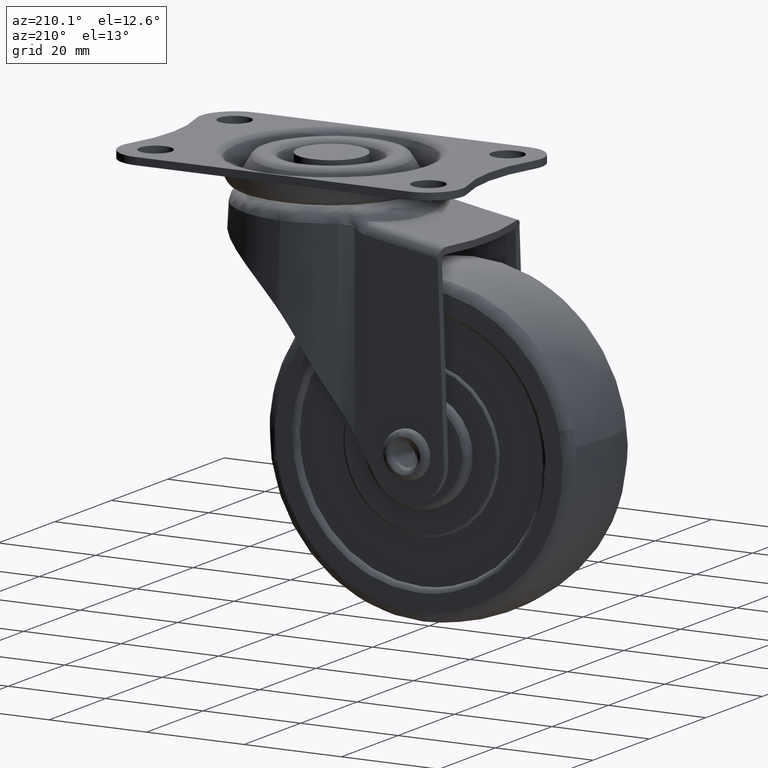
[diagram: clean part render]
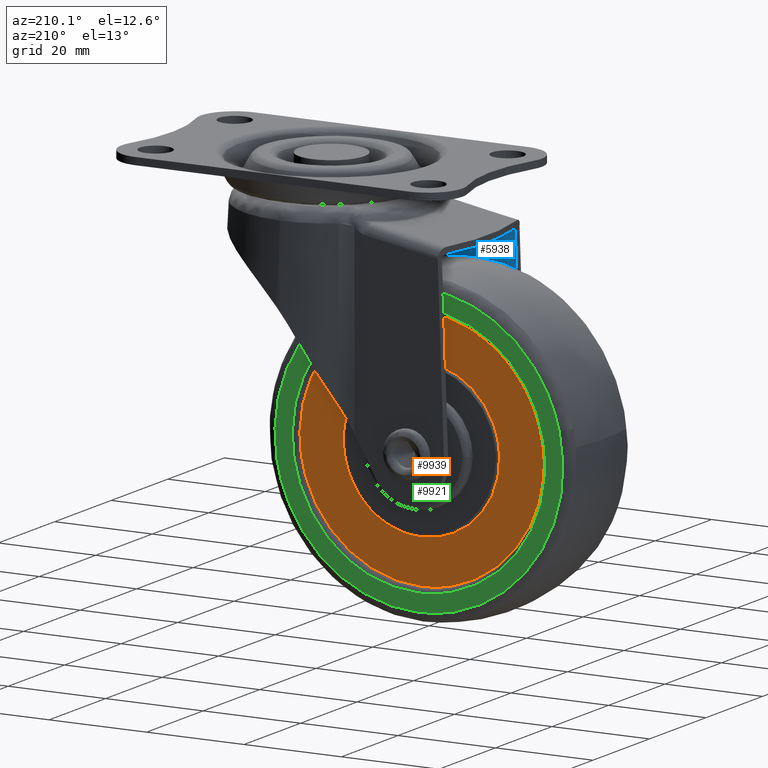
[diagram: same view with three faces highlighted in distinct colors, each labeled with its STEP entity id]
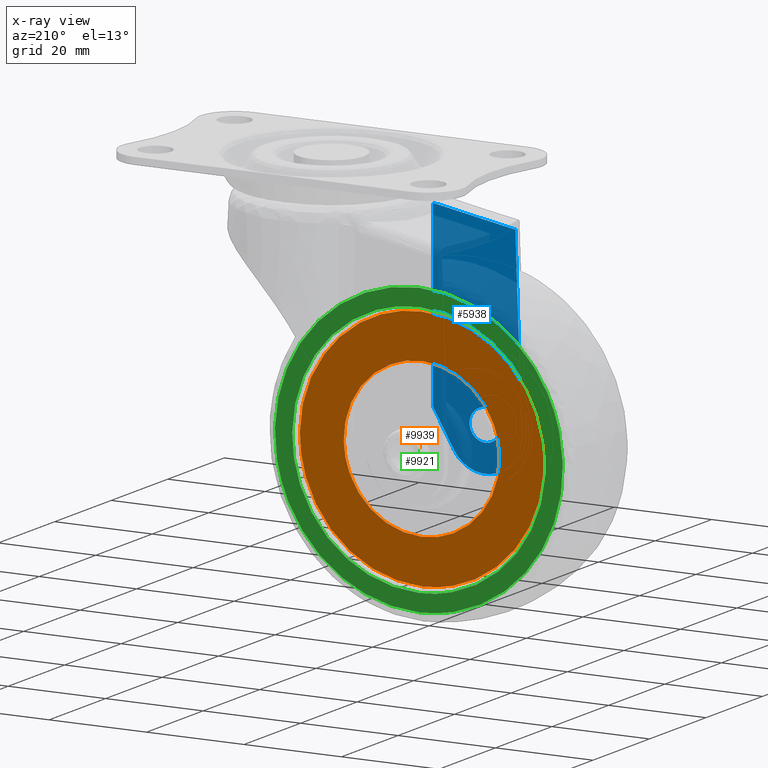
[diagram: x-ray of the same camera — body ghosted, the three highlighted faces saturated]
A machine part, auxiliary view with three faces highlighted in distinct colors.
The next image is the same camera in x-ray (body ghosted, the three faces saturated) — at least one of them is partly hidden behind the body in this view.
Their STEP definitions:

[orange] entity #9939 — the highlighted face is a freeform B-spline surface patch.
#9165=CARTESIAN_POINT('',(-48.939141846007182,9.500000000600332,-49.743327289437843));
#9166=VERTEX_POINT('',#9165);
#9177=CARTESIAN_POINT('',(-24.0,9.499999999999250,-72.999996000000010));
#9178=VERTEX_POINT('',#9177);
#9179=CARTESIAN_POINT('',(-48.939141846007182,9.500000000600332,-49.743327289437843));
#9180=CARTESIAN_POINT('',(-48.850623939567228,9.500000000567590,-51.010621126954668));
#9181=CARTESIAN_POINT('',(-48.522542705484177,9.500000000509926,-53.240746031067680));
#9182=CARTESIAN_POINT('',(-47.545731310311872,9.500000000422443,-56.626704257228504));
#9183=CARTESIAN_POINT('',(-46.022002323247712,9.500000000333177,-60.078594272617359));
#9184=CARTESIAN_POINT('',(-43.672727054856452,9.500000000241204,-63.642440613359092));
#9185=CARTESIAN_POINT('',(-40.896903108335849,9.500000000165729,-66.553119113340117));
#9186=CARTESIAN_POINT('',(-38.266301986923821,9.500000000113197,-68.593016456514988));
#9187=CARTESIAN_POINT('',(-35.844666200468538,9.500000000074929,-70.071823042099808));
#9188=CARTESIAN_POINT('',(-33.453088855772123,9.500000000045855,-71.196985915342367));
#9189=CARTESIAN_POINT('',(-30.492344783800380,9.500000000019663,-72.215411228988557));
#9190=CARTESIAN_POINT('',(-27.371398492487369,9.500000000002514,-72.855473239428022));
#9191=CARTESIAN_POINT('',(-25.026067112568580,9.499999999999782,-73.000013051441030));
#9192=CARTESIAN_POINT('',(-24.0,9.499999999999250,-72.999996000000010));
#9193=B_SPLINE_CURVE_WITH_KNOTS('',3,(#9179,#9180,#9181,#9182,#9183,#9184,#9185,#9186,#9187,#9188,#9189,#9190,#9191,#9192),.UNSPECIFIED.,.F.,.U.,(4,1,1,1,1,1,1,1,1,1,1,4),(0.000000067497595,3.811141506573662,6.742797878425922,10.553973476878570,15.098040981042439,19.495493127105309,22.573731554936462,25.065669646339490,27.997327437654850,30.489242134150999,34.447003549939197,37.525214640770344),.UNSPECIFIED.);
#9194=EDGE_CURVE('',#9166,#9178,#9193,.T.);
#9196=CARTESIAN_POINT('',(0.998026105094186,9.500000000618792,-47.685845002819782));
#9197=VERTEX_POINT('',#9196);
#9198=CARTESIAN_POINT('',(-24.0,9.499999999999250,-72.999996000000010));
#9199=CARTESIAN_POINT('',(-22.556832388202981,9.499999999974609,-73.000109820509593));
#9200=CARTESIAN_POINT('',(-19.722074604298580,9.499999999936309,-72.753866089340079));
#9201=CARTESIAN_POINT('',(-15.970036875507260,9.499999999912994,-71.769098026257467));
#9202=CARTESIAN_POINT('',(-12.310694546031460,9.499999999914774,-70.213234530808876));
#9203=CARTESIAN_POINT('',(-9.146351246523020,9.499999999942093,-68.244132308917756));
#9204=CARTESIAN_POINT('',(-6.538444440088044,9.499999999991763,-65.968288138885029));
#9205=CARTESIAN_POINT('',(-4.453445593694538,9.500000000050504,-63.679866191014170));
#9206=CARTESIAN_POINT('',(-2.678591410363042,9.500000000122872,-61.201137442517712));
#9207=CARTESIAN_POINT('',(-1.136535041079512,9.500000000217415,-58.277200742827247));
#9208=CARTESIAN_POINT('',(0.095745696772568,9.500000000332220,-54.988938168211142));
#9209=CARTESIAN_POINT('',(0.861762773185154,9.500000000465482,-51.450397854770877));
#9210=CARTESIAN_POINT('',(1.012955299274555,9.500000000569530,-48.871199615428843));
#9211=CARTESIAN_POINT('',(0.998026105094186,9.500000000618792,-47.685845002819782));
#9212=B_SPLINE_CURVE_WITH_KNOTS('',3,(#9198,#9199,#9200,#9201,#9202,#9203,#9204,#9205,#9206,#9207,#9208,#9209,#9210,#9211),.UNSPECIFIED.,.F.,.U.,(4,1,1,1,1,1,1,1,1,1,1,4),(0.000000076253336,4.329488293028973,8.504401049516243,11.596915601647630,16.235711844516231,19.637485069020912,21.956783402940129,25.513185396143161,28.760342778874740,31.852858677649770,36.027773728794394,39.584130528737099),.UNSPECIFIED.);
#9213=EDGE_CURVE('',#9178,#9197,#9212,.T.);
#9311=CARTESIAN_POINT('',(-24.0,9.499999999999250,-22.999995999999999));
#9312=VERTEX_POINT('',#9311);
#9313=CARTESIAN_POINT('',(0.998026105094186,9.500000000618792,-47.685845002819782));
#9314=CARTESIAN_POINT('',(0.984666661163612,9.500000000592069,-46.620746325020910));
#9315=CARTESIAN_POINT('',(0.806037927817079,9.500000000533513,-44.289517366722627));
#9316=CARTESIAN_POINT('',(0.139534466126632,9.500000000457547,-41.258846912117981));
#9317=CARTESIAN_POINT('',(-0.854574051082417,9.500000000386423,-38.432762878070498));
#9318=CARTESIAN_POINT('',(-2.309509362781089,9.500000000309539,-35.355128805962408));
#9319=CARTESIAN_POINT('',(-4.266753536347144,9.500000000237224,-32.493945410476343));
#9320=CARTESIAN_POINT('',(-6.583913616590419,9.500000000175367,-30.002379754896118));
#9321=CARTESIAN_POINT('',(-9.070025169408622,9.500000000120094,-27.829250011453109));
#9322=CARTESIAN_POINT('',(-12.117292056902260,9.500000000071948,-25.879920663054371));
#9323=CARTESIAN_POINT('',(-15.710808014749640,9.500000000032348,-24.327461523898720));
#9324=CARTESIAN_POINT('',(-19.536394979005689,9.500000000006370,-23.277663518438189));
#9325=CARTESIAN_POINT('',(-22.376828915726168,9.499999999999162,-22.999776089343332));
#9326=CARTESIAN_POINT('',(-24.0,9.499999999999250,-22.999995999999999));
#9327=B_SPLINE_CURVE_WITH_KNOTS('',3,(#9313,#9314,#9315,#9316,#9317,#9318,#9319,#9320,#9321,#9322,#9323,#9324,#9325,#9326),.UNSPECIFIED.,.F.,.U.,(4,1,1,1,1,1,1,1,1,1,1,4),(0.000000073063255,3.195557343852556,6.999856817659520,9.282438064157510,12.173704510756410,17.195341110352651,19.630030148410640,22.369118198349650,27.086448829008749,30.434232295920019,34.086338670871022,38.955809040821400),.UNSPECIFIED.);
#9328=EDGE_CURVE('',#9197,#9312,#9327,.T.);
#9330=CARTESIAN_POINT('',(-24.0,9.499999999999250,-22.999995999999999));
#9331=CARTESIAN_POINT('',(-25.655552505679228,9.499999999972477,-22.999784726157792));
#9332=CARTESIAN_POINT('',(-28.806348288670840,9.499999999933642,-23.314099933455559));
#9333=CARTESIAN_POINT('',(-32.918763860840613,9.499999999912861,-24.534112780995478));
#9334=CARTESIAN_POINT('',(-36.638191546449043,9.499999999919670,-26.309694527010009));
#9335=CARTESIAN_POINT('',(-39.554131551770361,9.499999999947821,-28.314919299367510));
#9336=CARTESIAN_POINT('',(-42.380666136965687,9.500000000000291,-30.930217379363270));
#9337=CARTESIAN_POINT('',(-44.918766845454442,9.500000000076225,-34.048091022820607));
#9338=CARTESIAN_POINT('',(-47.069721564714527,9.500000000190973,-38.010028561308943));
#9339=CARTESIAN_POINT('',(-48.313667809097410,9.500000000313287,-41.831962705679302));
#9340=CARTESIAN_POINT('',(-48.988716255223963,9.500000000447100,-45.678207436001543));
#9341=CARTESIAN_POINT('',(-49.047302341968567,9.500000000540705,-48.198368300116762));
#9342=CARTESIAN_POINT('',(-48.939141846007182,9.500000000600332,-49.743327289437843));
#9343=B_SPLINE_CURVE_WITH_KNOTS('',3,(#9330,#9331,#9332,#9333,#9334,#9335,#9336,#9337,#9338,#9339,#9340,#9341,#9342),.UNSPECIFIED.,.F.,.U.,(4,1,1,1,1,1,1,1,1,1,4),(0.000000081183039,4.966624691977451,9.452611291053817,12.817105815723670,17.303103327794261,20.026740867956491,24.352457605378358,29.319111985509920,33.484683901261057,36.368533096317250,41.014725634743392),.UNSPECIFIED.);
#9344=EDGE_CURVE('',#9312,#9166,#9343,.T.);
#9373=CARTESIAN_POINT('',(-8.005052971470526,9.500000004374400,-48.402077527225600));
#9374=VERTEX_POINT('',#9373);
#9375=CARTESIAN_POINT('',(-24.0,9.499999999999361,-31.999995999999999));
#9376=VERTEX_POINT('',#9375);
#9377=CARTESIAN_POINT('',(-8.005052971470526,9.500000004374400,-48.402077527225600));
#9378=CARTESIAN_POINT('',(-7.972984933660475,9.500000003791490,-47.139006773630207));
#9379=CARTESIAN_POINT('',(-8.163836458145424,9.500000002900263,-45.105570107788672));
#9380=CARTESIAN_POINT('',(-8.974929506401589,9.500000001786930,-42.321221782593071));
#9381=CARTESIAN_POINT('',(-10.003740791964340,9.500000000979537,-40.114089304944777));
#9382=CARTESIAN_POINT('',(-11.213204296140880,9.500000000393877,-38.315755719828239));
#9383=CARTESIAN_POINT('',(-12.607582536139560,9.499999999930020,-36.705294562363193));
#9384=CARTESIAN_POINT('',(-14.244041745459411,9.499999999576627,-35.233353909975577));
#9385=CARTESIAN_POINT('',(-16.625710580188411,9.499999999337458,-33.694720120900499));
#9386=CARTESIAN_POINT('',(-19.877432441718721,9.499999999366624,-32.371227594054247));
#9387=CARTESIAN_POINT('',(-22.503760750339389,9.499999999707690,-31.999406674674312));
#9388=CARTESIAN_POINT('',(-24.0,9.499999999999361,-31.999995999999999));
#9389=B_SPLINE_CURVE_WITH_KNOTS('',3,(#9377,#9378,#9379,#9380,#9381,#9382,#9383,#9384,#9385,#9386,#9387,#9388),.UNSPECIFIED.,.F.,.U.,(4,1,1,1,1,1,1,1,1,4),(0.000000086544187,3.790335944859091,6.084488540147010,8.677883967285666,11.071805455489040,12.567979506956400,15.061571250557639,17.654987880271360,21.046350751852319,25.534906437358899),.UNSPECIFIED.);
#9390=EDGE_CURVE('',#9374,#9376,#9389,.T.);
#9443=CARTESIAN_POINT('',(-39.994947028529467,9.500000004374400,-47.597914472774413));
#9444=VERTEX_POINT('',#9443);
#9455=CARTESIAN_POINT('',(-24.0,9.499999999999361,-31.999995999999999));
#9456=CARTESIAN_POINT('',(-24.837228712275319,9.499999999999353,-31.999944834499221));
#9457=CARTESIAN_POINT('',(-26.415073707703151,9.500000000034181,-32.124135429715167));
#9458=CARTESIAN_POINT('',(-28.868605503678879,9.500000000192681,-32.689270739036019));
#9459=CARTESIAN_POINT('',(-31.057005564891259,9.500000000440281,-33.571993707406101));
#9460=CARTESIAN_POINT('',(-33.361803787393207,9.500000000822842,-34.935862841873757));
#9461=CARTESIAN_POINT('',(-35.371158851373380,9.500000001294980,-36.619153379279282));
#9462=CARTESIAN_POINT('',(-36.979612326053612,9.500000001839139,-38.559150072614507));
#9463=CARTESIAN_POINT('',(-38.171964223696513,9.500000002376760,-40.476000656317147));
#9464=CARTESIAN_POINT('',(-39.000489553920922,9.500000002888031,-42.298705920277847));
#9465=CARTESIAN_POINT('',(-39.738440005813352,9.500000003572129,-44.737617829724272));
#9466=CARTESIAN_POINT('',(-39.966824677087928,9.500000004058373,-46.471203375925647));
#9467=CARTESIAN_POINT('',(-39.994947028529467,9.500000004374400,-47.597914472774413));
#9468=B_SPLINE_CURVE_WITH_KNOTS('',3,(#9455,#9456,#9457,#9458,#9459,#9460,#9461,#9462,#9463,#9464,#9465,#9466,#9467),.UNSPECIFIED.,.F.,.U.,(4,1,1,1,1,1,1,1,1,1,4),(0.000000078909387,2.511680784958934,4.733602078825573,7.535125730848392,9.563829380181657,12.751725189008120,15.360041764307610,17.098917712572710,19.514035586334199,21.349526118693529,24.730654932566122),.UNSPECIFIED.);
#9469=EDGE_CURVE('',#9376,#9444,#9468,.T.);
#9497=CARTESIAN_POINT('',(-24.0,9.499999999999361,-63.999996000000003));
#9498=VERTEX_POINT('',#9497);
#9499=CARTESIAN_POINT('',(-24.0,9.499999999999361,-63.999996000000003));
#9500=CARTESIAN_POINT('',(-23.033960487635898,9.499999999999332,-64.000089077458696));
#9501=CARTESIAN_POINT('',(-21.520539039288661,9.500000000037941,-63.862492798696721));
#9502=CARTESIAN_POINT('',(-19.386948131300581,9.500000000179599,-63.357347735720779));
#9503=CARTESIAN_POINT('',(-17.171937233706569,9.500000000404393,-62.556126938802997));
#9504=CARTESIAN_POINT('',(-14.609219532246049,9.500000000812319,-61.101674179668947));
#9505=CARTESIAN_POINT('',(-12.166785163919929,9.500000001422370,-58.926578848014522));
#9506=CARTESIAN_POINT('',(-10.322076336488660,9.500000002111639,-56.469439879186247));
#9507=CARTESIAN_POINT('',(-9.066373039965928,9.500000002817361,-53.953037965550863));
#9508=CARTESIAN_POINT('',(-8.252383183251009,9.500000003572184,-51.262644415868152));
#9509=CARTESIAN_POINT('',(-8.030026038012244,9.500000004094231,-49.400010045519977));
#9510=CARTESIAN_POINT('',(-8.005052971470526,9.500000004374400,-48.402077527225600));
#9511=B_SPLINE_CURVE_WITH_KNOTS('',3,(#9499,#9500,#9501,#9502,#9503,#9504,#9505,#9506,#9507,#9508,#9509,#9510),.UNSPECIFIED.,.F.,.U.,(4,1,1,1,1,1,1,1,1,4),(0.000000078794965,2.898098585693571,4.540393147344602,6.569083032467422,9.950242028120137,13.331335169515050,16.326081112703921,19.127617196697781,21.735940677312929,24.730654932566271),.UNSPECIFIED.);
#9512=EDGE_CURVE('',#9498,#9374,#9511,.T.);
#9514=CARTESIAN_POINT('',(-39.994947028529467,9.500000004374400,-47.597914472774413));
#9515=CARTESIAN_POINT('',(-40.026995823671363,9.500000003791540,-48.860977398163357));
#9516=CARTESIAN_POINT('',(-39.826835555600731,9.500000002856387,-50.994450645920971));
#9517=CARTESIAN_POINT('',(-39.027586676077860,9.500000001801732,-53.645287654773483));
#9518=CARTESIAN_POINT('',(-38.007239699618367,9.500000000992712,-55.852264231364757));
#9519=CARTESIAN_POINT('',(-36.855678050714097,9.500000000413678,-57.611523506197159));
#9520=CARTESIAN_POINT('',(-35.302987683515852,9.499999999902300,-59.393588844115392));
#9521=CARTESIAN_POINT('',(-33.647444142449203,9.499999999561569,-60.845725847183019));
#9522=CARTESIAN_POINT('',(-31.703830196623588,9.499999999378387,-62.075577167623223));
#9523=CARTESIAN_POINT('',(-29.587791859884199,9.499999999343432,-63.054480464081692));
#9524=CARTESIAN_POINT('',(-27.058813824731899,9.499999999494982,-63.800275693959279));
#9525=CARTESIAN_POINT('',(-25.063958413251321,9.499999999792294,-64.000136073601610));
#9526=CARTESIAN_POINT('',(-24.0,9.499999999999361,-63.999996000000003));
#9527=B_SPLINE_CURVE_WITH_KNOTS('',3,(#9514,#9515,#9516,#9517,#9518,#9519,#9520,#9521,#9522,#9523,#9524,#9525,#9526),.UNSPECIFIED.,.F.,.U.,(4,1,1,1,1,1,1,1,1,1,4),(0.000000086559965,3.790335944871920,6.383726942143927,8.278905939846624,11.071805455495580,12.667758513308460,15.360840149392750,17.654987880273541,19.550164213251819,22.343058987394699,25.534906437359268),.UNSPECIFIED.);
#9528=EDGE_CURVE('',#9444,#9498,#9527,.T.);
#9922=CARTESIAN_POINT('',(-51.494425730889041,9.499999999999311,-20.502496275544821));
#9923=CARTESIAN_POINT('',(-51.494425730889041,9.499999999999311,-75.497493489281013));
#9924=CARTESIAN_POINT('',(3.495287193993158,9.499999999999311,-20.502496275544821));
#9925=CARTESIAN_POINT('',(3.495287193993158,9.499999999999311,-75.497493489281013));
#9926=B_SPLINE_SURFACE_WITH_KNOTS('',1,1,((#9922,#9924),(#9923,#9925)),.UNSPECIFIED.,.F.,.F.,.U.,(2,2),(2,2),(0.0,54.994997213736191),(0.0,54.989712924882198),.UNSPECIFIED.);
#9927=ORIENTED_EDGE('',*,*,#9194,.F.);
#9928=ORIENTED_EDGE('',*,*,#9344,.F.);
#9929=ORIENTED_EDGE('',*,*,#9328,.F.);
#9930=ORIENTED_EDGE('',*,*,#9213,.F.);
#9931=EDGE_LOOP('',(#9927,#9928,#9929,#9930));
#9932=FACE_OUTER_BOUND('',#9931,.T.);
#9933=ORIENTED_EDGE('',*,*,#9469,.T.);
#9934=ORIENTED_EDGE('',*,*,#9528,.T.);
#9935=ORIENTED_EDGE('',*,*,#9512,.T.);
#9936=ORIENTED_EDGE('',*,*,#9390,.T.);
#9937=EDGE_LOOP('',(#9933,#9934,#9935,#9936));
#9938=FACE_BOUND('',#9937,.T.);
#9939=ADVANCED_FACE('',(#9932,#9938),#9926,.F.);

[blue] entity #5938 — the highlighted face is a freeform B-spline surface patch.
#944=CARTESIAN_POINT('',(-26.481556283670461,-12.999999999966141,-50.098657885709500));
#945=VERTEX_POINT('',#944);
#946=CARTESIAN_POINT('',(-24.0,-13.0,-51.249996000000003));
#947=VERTEX_POINT('',#946);
#948=CARTESIAN_POINT('',(-26.481556283670461,-12.999999999966141,-50.098657885709500));
#949=CARTESIAN_POINT('',(-26.320145476166580,-12.999999999968360,-50.289573090392793));
#950=CARTESIAN_POINT('',(-25.909816961663410,-12.999999999973941,-50.674449113691907));
#951=CARTESIAN_POINT('',(-25.073444881198000,-12.999999999985301,-51.126641523023537));
#952=CARTESIAN_POINT('',(-24.382381656594230,-12.999999999994840,-51.250231654522530));
#953=CARTESIAN_POINT('',(-24.0,-13.0,-51.249996000000003));
#954=B_SPLINE_CURVE_WITH_KNOTS('',3,(#948,#949,#950,#951,#952,#953),.UNSPECIFIED.,.F.,.U.,(4,1,1,4),(0.000000054423728,0.750026368090435,1.676517548559968,2.823627261322833),.UNSPECIFIED.);
#955=EDGE_CURVE('',#945,#947,#954,.T.);
#1017=CARTESIAN_POINT('',(-26.237152124168681,-13.000000000016961,-45.642529768658513));
#1018=VERTEX_POINT('',#1017);
#1024=CARTESIAN_POINT('',(-24.0,-13.0,-44.749996000000003));
#1025=VERTEX_POINT('',#1024);
#1026=CARTESIAN_POINT('',(-24.0,-13.0,-44.749996000000003));
#1027=CARTESIAN_POINT('',(-24.334161584302610,-13.000000000002540,-44.749829763905737));
#1028=CARTESIAN_POINT('',(-24.873799672842729,-13.000000000006629,-44.834007415697229));
#1029=CARTESIAN_POINT('',(-25.633701749968360,-13.000000000012379,-45.158311397448138));
#1030=CARTESIAN_POINT('',(-26.032119369917240,-13.000000000015429,-45.447843110138123));
#1031=CARTESIAN_POINT('',(-26.237152124168681,-13.000000000016961,-45.642529768658513));
#1032=B_SPLINE_CURVE_WITH_KNOTS('',3,(#1026,#1027,#1028,#1029,#1030,#1031),.UNSPECIFIED.,.F.,.U.,(4,1,1,4),(0.000000029992011,1.002438335759394,1.619299788317497,2.467517042056607),.UNSPECIFIED.);
#1033=EDGE_CURVE('',#1025,#1018,#1032,.T.);
#1035=CARTESIAN_POINT('',(-20.750000000000650,-13.0,-47.999993940924668));
#1036=VERTEX_POINT('',#1035);
#1037=CARTESIAN_POINT('',(-20.750000000000650,-13.0,-47.999993940924668));
#1038=CARTESIAN_POINT('',(-20.749823468126451,-13.000000000000011,-47.654318907012630));
#1039=CARTESIAN_POINT('',(-20.857056137744561,-13.0,-46.989699513917053));
#1040=CARTESIAN_POINT('',(-21.255804236078379,-13.0,-46.197412332973009));
#1041=CARTESIAN_POINT('',(-21.814330322877769,-12.999999999999980,-45.550033071602172));
#1042=CARTESIAN_POINT('',(-22.495498646781389,-13.000000000000110,-45.070204219129877));
#1043=CARTESIAN_POINT('',(-23.282089327429581,-12.999999999999851,-44.799691547612049));
#1044=CARTESIAN_POINT('',(-23.787302683176389,-13.000000000000091,-44.749987112314528));
#1045=CARTESIAN_POINT('',(-24.0,-13.0,-44.749996000000003));
#1046=B_SPLINE_CURVE_WITH_KNOTS('',3,(#1037,#1038,#1039,#1040,#1041,#1042,#1043,#1044,#1045),.UNSPECIFIED.,.F.,.U.,(4,1,1,1,1,1,4),(0.000000089826180,1.036989920742594,1.994253930812854,2.632368587039709,3.589597379243732,4.467090688838280,5.105215008530514),.UNSPECIFIED.);
#1047=EDGE_CURVE('',#1036,#1025,#1046,.T.);
#1049=CARTESIAN_POINT('',(-24.0,-13.0,-51.249996000000003));
#1050=CARTESIAN_POINT('',(-23.654316018892981,-13.0,-51.250180651119962));
#1051=CARTESIAN_POINT('',(-23.149254699824489,-13.0,-51.168625625884339));
#1052=CARTESIAN_POINT('',(-22.484195482381629,-13.0,-50.893076130499722));
#1053=CARTESIAN_POINT('',(-21.987597548808012,-12.999999999999980,-50.578639462224750));
#1054=CARTESIAN_POINT('',(-21.523210320212069,-13.000000000000020,-50.136496871303130));
#1055=CARTESIAN_POINT('',(-21.153991728742259,-13.0,-49.612250270429762));
#1056=CARTESIAN_POINT('',(-20.839957621852509,-12.999999999999989,-48.903916413054212));
#1057=CARTESIAN_POINT('',(-20.749809449708589,-13.000000000000011,-48.345675085953197));
#1058=CARTESIAN_POINT('',(-20.750000000000650,-13.0,-47.999993940924668));
#1059=B_SPLINE_CURVE_WITH_KNOTS('',3,(#1049,#1050,#1051,#1052,#1053,#1054,#1055,#1056,#1057,#1058),.UNSPECIFIED.,.F.,.U.,(4,1,1,1,1,1,1,4),(0.000000087002048,1.036990390057520,1.515618405322747,2.153791847223400,2.791894887793169,3.430051775339062,4.068227027377721,5.105217329646191),.UNSPECIFIED.);
#1060=EDGE_CURVE('',#947,#1036,#1059,.T.);
#1079=CARTESIAN_POINT('',(-27.249999999999350,-13.0,-47.999998059075352));
#1080=VERTEX_POINT('',#1079);
#1081=CARTESIAN_POINT('',(-27.249999999999350,-13.0,-47.999998059075352));
#1082=CARTESIAN_POINT('',(-27.250113954432010,-12.999999999995049,-48.308960277703143));
#1083=CARTESIAN_POINT('',(-27.171468133828242,-12.999999999986180,-48.855512742221457));
#1084=CARTESIAN_POINT('',(-26.877097068967071,-12.999999999974809,-49.561688217957403));
#1085=CARTESIAN_POINT('',(-26.619691892112758,-12.999999999968781,-49.935357128867238));
#1086=CARTESIAN_POINT('',(-26.481556283670461,-12.999999999966141,-50.098657885709500));
#1087=B_SPLINE_CURVE_WITH_KNOTS('',3,(#1081,#1082,#1083,#1084,#1085,#1086),.UNSPECIFIED.,.F.,.U.,(4,1,1,4),(0.000000032594047,0.926883505496905,1.639846319897457,2.281526558976670),.UNSPECIFIED.);
#1088=EDGE_CURVE('',#1080,#945,#1087,.T.);
#1090=CARTESIAN_POINT('',(-26.237152124168681,-13.000000000016961,-45.642529768658513));
#1091=CARTESIAN_POINT('',(-26.496432223494178,-13.000000000015239,-45.888249150253813));
#1092=CARTESIAN_POINT('',(-26.848487962456328,-13.000000000011809,-46.355208891952813));
#1093=CARTESIAN_POINT('',(-27.176645692820411,-13.000000000005960,-47.175791095951119));
#1094=CARTESIAN_POINT('',(-27.250099995611610,-13.000000000002171,-47.697759978990753));
#1095=CARTESIAN_POINT('',(-27.249999999999350,-13.0,-47.999998059075352));
#1096=B_SPLINE_CURVE_WITH_KNOTS('',3,(#1090,#1091,#1092,#1093,#1094,#1095),.UNSPECIFIED.,.F.,.U.,(4,1,1,4),(0.000000023110257,1.071566817914018,1.730991074428667,2.637701208092743),.UNSPECIFIED.);
#1097=EDGE_CURVE('',#1018,#1080,#1096,.T.);
#2535=CARTESIAN_POINT('',(-13.266489733540080,-13.0,-8.790331913446840));
#2536=VERTEX_POINT('',#2535);
#2581=CARTESIAN_POINT('',(-30.063178654707151,-13.0,-11.752041086692540));
#2582=VERTEX_POINT('',#2581);
#2601=CARTESIAN_POINT('',(-30.063178654707151,-13.0,-11.752041086692540));
#2602=CARTESIAN_POINT('',(-13.266489733540080,-13.0,-8.790331913446840));
#2603=QUASI_UNIFORM_CURVE('',1,(#2601,#2602),.UNSPECIFIED.,.F.,.U.);
#2604=EDGE_CURVE('',#2582,#2536,#2603,.T.);
#2631=CARTESIAN_POINT('',(-30.218664613608599,-12.999439443640700,-11.779478671031120));
#2632=VERTEX_POINT('',#2631);
#2633=CARTESIAN_POINT('',(-30.218664613608599,-12.999439443640700,-11.779478671031120));
#2634=CARTESIAN_POINT('',(-30.063178654707151,-13.0,-11.752041086692540));
#2635=QUASI_UNIFORM_CURVE('',1,(#2633,#2634),.UNSPECIFIED.,.F.,.U.);
#2636=EDGE_CURVE('',#2632,#2582,#2635,.T.);
#3161=CARTESIAN_POINT('',(-30.180267597156998,-13.0,-12.111724361906440));
#3162=VERTEX_POINT('',#3161);
#3163=CARTESIAN_POINT('',(-30.180267597156998,-13.0,-12.111724361906440));
#3164=CARTESIAN_POINT('',(-30.175762272486441,-12.999814634781000,-11.999875836600610));
#3165=CARTESIAN_POINT('',(-30.188789618275649,-12.999624783072850,-11.887352030404420));
#3166=CARTESIAN_POINT('',(-30.218664613608599,-12.999439443640700,-11.779478671031120));
#3167=B_SPLINE_CURVE_WITH_KNOTS('',3,(#3163,#3164,#3165,#3166),.UNSPECIFIED.,.F.,.U.,(4,4),(0.000000011802449,0.335819902293640),.UNSPECIFIED.);
#3168=EDGE_CURVE('',#3162,#2632,#3167,.T.);
#5749=CARTESIAN_POINT('',(-13.266489733540080,-13.0,-45.825763885789712));
#5750=VERTEX_POINT('',#5749);
#5764=CARTESIAN_POINT('',(-13.266489733540080,-13.0,-8.790331913446840));
#5765=CARTESIAN_POINT('',(-13.266489733540080,-13.0,-45.825763885789712));
#5766=QUASI_UNIFORM_CURVE('',1,(#5764,#5765),.UNSPECIFIED.,.F.,.U.);
#5767=EDGE_CURVE('',#2536,#5750,#5766,.T.);
#5879=CARTESIAN_POINT('',(-32.405797270474288,-13.0,-6.387293362158804));
#5880=CARTESIAN_POINT('',(-12.355963084252760,-13.0,-6.387293362158804));
#5881=CARTESIAN_POINT('',(-32.405797270474288,-13.0,-59.302244056137269));
#5882=CARTESIAN_POINT('',(-12.355963084252760,-13.0,-59.302244056137269));
#5883=B_SPLINE_SURFACE_WITH_KNOTS('',1,1,((#5879,#5881),(#5880,#5882)),.UNSPECIFIED.,.F.,.F.,.U.,(2,2),(2,2),(0.0,20.049834186221521),(0.0,52.914950693978469),.UNSPECIFIED.);
#5884=ORIENTED_EDGE('',*,*,#3168,.T.);
#5885=ORIENTED_EDGE('',*,*,#2636,.T.);
#5886=ORIENTED_EDGE('',*,*,#2604,.T.);
#5887=ORIENTED_EDGE('',*,*,#5767,.T.);
#5888=CARTESIAN_POINT('',(-17.508524462259849,-13.0,-53.156425204528297));
#5889=VERTEX_POINT('',#5888);
#5890=CARTESIAN_POINT('',(-17.508524462259849,-13.0,-53.156425204528297));
#5891=CARTESIAN_POINT('',(-13.266489733540080,-13.0,-45.825763885789712));
#5892=QUASI_UNIFORM_CURVE('',1,(#5890,#5891),.UNSPECIFIED.,.F.,.U.);
#5893=EDGE_CURVE('',#5889,#5750,#5892,.T.);
#5894=ORIENTED_EDGE('',*,*,#5893,.F.);
#5895=CARTESIAN_POINT('',(-31.495269806296999,-13.0,-49.133772546533599));
#5896=VERTEX_POINT('',#5895);
#5897=CARTESIAN_POINT('',(-17.508524462259849,-13.0,-53.156425204528297));
#5898=CARTESIAN_POINT('',(-17.871563883085209,-13.000000000000069,-53.784352042898490));
#5899=CARTESIAN_POINT('',(-18.651819272555802,-12.999999999999940,-54.769197465504142));
#5900=CARTESIAN_POINT('',(-19.934876232644498,-13.000000000000020,-55.749434042544202));
#5901=CARTESIAN_POINT('',(-21.135073003657499,-12.999999999999959,-56.368680040959518));
#5902=CARTESIAN_POINT('',(-22.497503612433349,-13.0,-56.806039387702867));
#5903=CARTESIAN_POINT('',(-24.003317640250991,-12.999999999999959,-56.954319997386037));
#5904=CARTESIAN_POINT('',(-25.399179368650518,-13.000000000000069,-56.801293671740602));
#5905=CARTESIAN_POINT('',(-26.700908150386969,-12.999999999999771,-56.441539460311567));
#5906=CARTESIAN_POINT('',(-27.990735908954669,-13.000000000000050,-55.816915048938760));
#5907=CARTESIAN_POINT('',(-29.262933654816891,-13.000000000000011,-54.822590519747692));
#5908=CARTESIAN_POINT('',(-30.264085172273312,-12.999999999999989,-53.621738929387433));
#5909=CARTESIAN_POINT('',(-30.947141185950890,-12.999999999999980,-52.334049742227457));
#5910=CARTESIAN_POINT('',(-31.417566607641980,-13.0,-50.847128501112209));
#5911=CARTESIAN_POINT('',(-31.518469361614279,-13.000000000000011,-49.780959588866487));
#5912=CARTESIAN_POINT('',(-31.495269806296999,-13.0,-49.133772546533599));
#5913=B_SPLINE_CURVE_WITH_KNOTS('',3,(#5897,#5898,#5899,#5900,#5901,#5902,#5903,#5904,#5905,#5906,#5907,#5908,#5909,#5910,#5911,#5912),.UNSPECIFIED.,.F.,.U.,(4,1,1,1,1,1,1,1,1,1,1,1,1,4),(0.000000317277586,2.175894504332145,3.730106568695025,4.818053303233185,6.216851718139891,8.004192734667221,9.325320021332370,10.413185741535541,12.045130925990691,13.599342295957090,15.231273030136190,16.707776646194588,17.951156908361781,19.893898520610680),.UNSPECIFIED.);
#5914=EDGE_CURVE('',#5889,#5896,#5913,.T.);
#5915=ORIENTED_EDGE('',*,*,#5914,.T.);
#5916=CARTESIAN_POINT('',(-30.630885817255852,-13.000000000000400,-24.798118535868952));
#5917=VERTEX_POINT('',#5916);
#5918=CARTESIAN_POINT('',(-30.630885817255852,-13.000000000000400,-24.798118535868952));
#5919=CARTESIAN_POINT('',(-31.495269806296999,-13.0,-49.133772546533599));
#5920=QUASI_UNIFORM_CURVE('',1,(#5918,#5919),.UNSPECIFIED.,.F.,.U.);
#5921=EDGE_CURVE('',#5917,#5896,#5920,.T.);
#5922=ORIENTED_EDGE('',*,*,#5921,.F.);
#5923=CARTESIAN_POINT('',(-30.180267597156998,-13.0,-12.111724361906440));
#5924=CARTESIAN_POINT('',(-30.630885817255852,-13.000000000000400,-24.798118535868952));
#5925=QUASI_UNIFORM_CURVE('',1,(#5923,#5924),.UNSPECIFIED.,.F.,.U.);
#5926=EDGE_CURVE('',#3162,#5917,#5925,.T.);
#5927=ORIENTED_EDGE('',*,*,#5926,.F.);
#5928=EDGE_LOOP('',(#5884,#5885,#5886,#5887,#5894,#5915,#5922,#5927));
#5929=FACE_OUTER_BOUND('',#5928,.T.);
#5930=ORIENTED_EDGE('',*,*,#1060,.T.);
#5931=ORIENTED_EDGE('',*,*,#1047,.T.);
#5932=ORIENTED_EDGE('',*,*,#1033,.T.);
#5933=ORIENTED_EDGE('',*,*,#1097,.T.);
#5934=ORIENTED_EDGE('',*,*,#1088,.T.);
#5935=ORIENTED_EDGE('',*,*,#955,.T.);
#5936=EDGE_LOOP('',(#5930,#5931,#5932,#5933,#5934,#5935));
#5937=FACE_BOUND('',#5936,.T.);
#5938=ADVANCED_FACE('',(#5929,#5937),#5883,.T.);

[green] entity #9921 — the highlighted face is a freeform B-spline surface patch.
#8919=CARTESIAN_POINT('',(5.116486829496878,10.499999999998581,-52.967205852568263));
#8920=VERTEX_POINT('',#8919);
#8932=CARTESIAN_POINT('',(-24.0,10.499999999999201,-18.462850254670808));
#8933=VERTEX_POINT('',#8932);
#8934=CARTESIAN_POINT('',(5.116486829496878,10.499999999998581,-52.967205852568263));
#8935=CARTESIAN_POINT('',(5.443095896424351,10.499999999998650,-51.054449645654927));
#8936=CARTESIAN_POINT('',(5.646085483113113,10.499999999998730,-48.170453816322073));
#8937=CARTESIAN_POINT('',(5.347181246431039,10.499999999998840,-44.229540916947862));
#8938=CARTESIAN_POINT('',(4.707948742197188,10.499999999999000,-40.667877398004109));
#8939=CARTESIAN_POINT('',(3.444866984750701,10.499999999998890,-36.772351198612292));
#8940=CARTESIAN_POINT('',(1.574377038411544,10.499999999999259,-33.057615314246547));
#8941=CARTESIAN_POINT('',(-0.493595995133940,10.499999999998989,-30.006067867778182));
#8942=CARTESIAN_POINT('',(-3.074408422997697,10.499999999999501,-27.010024037687810));
#8943=CARTESIAN_POINT('',(-6.111542907580876,10.499999999998790,-24.362424821792860));
#8944=CARTESIAN_POINT('',(-9.383235275670014,10.499999999999980,-22.261569335447518));
#8945=CARTESIAN_POINT('',(-12.326747789420111,10.499999999998780,-20.807858627323402));
#8946=CARTESIAN_POINT('',(-15.407341952120319,10.499999999999590,-19.671494458535381));
#8947=CARTESIAN_POINT('',(-19.316272867140079,10.499999999999110,-18.723730719543209));
#8948=CARTESIAN_POINT('',(-22.260301858222999,10.499999999999060,-18.462693964764352));
#8949=CARTESIAN_POINT('',(-24.0,10.499999999999201,-18.462850254670808));
#8950=B_SPLINE_CURVE_WITH_KNOTS('',3,(#8934,#8935,#8936,#8937,#8938,#8939,#8940,#8941,#8942,#8943,#8944,#8945,#8946,#8947,#8948,#8949),.UNSPECIFIED.,.F.,.U.,(4,1,1,1,1,1,1,1,1,1,1,1,1,4),(0.000000067401089,5.821250590754467,8.631535608737657,11.843296045137681,16.660928621534111,20.876338828732589,24.288844311135879,27.701269799345209,32.719591190476990,36.332816743205811,39.343838039569491,42.555585990051533,46.168791877746372,51.387864427604988),.UNSPECIFIED.);
#8951=EDGE_CURVE('',#8920,#8933,#8950,.T.);
#8953=CARTESIAN_POINT('',(-52.784742275062293,10.499999999998581,-41.375677847220231));
#8954=VERTEX_POINT('',#8953);
#8955=CARTESIAN_POINT('',(-24.0,10.499999999999201,-18.462850254670808));
#8956=CARTESIAN_POINT('',(-25.809972757505712,10.499999999999201,-18.462640710422029));
#8957=CARTESIAN_POINT('',(-28.860968337699560,10.499999999999190,-18.744233848441301));
#8958=CARTESIAN_POINT('',(-33.383050293138652,10.499999999999190,-19.883751190689321));
#8959=CARTESIAN_POINT('',(-37.364006753303670,10.499999999999080,-21.526139413589160));
#8960=CARTESIAN_POINT('',(-40.864242755405932,10.499999999999050,-23.654234291366240));
#8961=CARTESIAN_POINT('',(-43.740844952116497,10.499999999998920,-25.944062422726191));
#8962=CARTESIAN_POINT('',(-46.378940262851913,10.499999999998980,-28.581180424135741));
#8963=CARTESIAN_POINT('',(-49.043469310111881,10.499999999999011,-32.093194494151007));
#8964=CARTESIAN_POINT('',(-51.347546996467933,10.499999999998639,-36.453038626003789));
#8965=CARTESIAN_POINT('',(-52.402147887718087,10.499999999998940,-39.712576772865702));
#8966=CARTESIAN_POINT('',(-52.784742275062293,10.499999999998581,-41.375677847220231));
#8967=B_SPLINE_CURVE_WITH_KNOTS('',3,(#8955,#8956,#8957,#8958,#8959,#8960,#8961,#8962,#8963,#8964,#8965,#8966),.UNSPECIFIED.,.F.,.U.,(4,1,1,1,1,1,1,1,1,4),(0.000000051314814,5.429879572804289,9.153233560319688,13.962567094530479,18.306490293767119,21.409251741657609,24.977476118490362,29.476525167018071,34.596134995050882,39.715740726622727),.UNSPECIFIED.);
#8968=EDGE_CURVE('',#8933,#8954,#8967,.T.);
#9078=CARTESIAN_POINT('',(-24.0,10.499999999999201,-77.537141745329208));
#9079=VERTEX_POINT('',#9078);
#9080=CARTESIAN_POINT('',(-52.784742275062293,10.499999999998581,-41.375677847220231));
#9081=CARTESIAN_POINT('',(-53.265607667806293,10.499999999998650,-43.463520567584602));
#9082=CARTESIAN_POINT('',(-53.680267676750923,10.499999999998700,-46.984763759996397));
#9083=CARTESIAN_POINT('',(-53.394335509343627,10.499999999998950,-51.617883370090112));
#9084=CARTESIAN_POINT('',(-52.670055943280850,10.499999999998851,-55.425999574215993));
#9085=CARTESIAN_POINT('',(-51.513445310445029,10.499999999999160,-58.983988532252212));
#9086=CARTESIAN_POINT('',(-50.014560627697357,10.499999999998870,-62.105258489853611));
#9087=CARTESIAN_POINT('',(-48.234360406327362,10.499999999998900,-64.989606036787563));
#9088=CARTESIAN_POINT('',(-46.276390387352023,10.499999999999750,-67.503221922886837));
#9089=CARTESIAN_POINT('',(-43.596438214144129,10.499999999998870,-70.206317871961986));
#9090=CARTESIAN_POINT('',(-40.593235765451823,10.499999999999419,-72.553311779645924));
#9091=CARTESIAN_POINT('',(-37.532770914949367,10.499999999999281,-74.317538009642945));
#9092=CARTESIAN_POINT('',(-34.498281922901313,10.499999999999300,-75.664149170630523));
#9093=CARTESIAN_POINT('',(-31.272921750614799,10.499999999999231,-76.718323719922282));
#9094=CARTESIAN_POINT('',(-27.593800349823820,10.499999999999339,-77.397307469971608));
#9095=CARTESIAN_POINT('',(-25.105778546007130,10.499999999999160,-77.537155641831632));
#9096=CARTESIAN_POINT('',(-24.0,10.499999999999201,-77.537141745329208));
#9097=B_SPLINE_CURVE_WITH_KNOTS('',3,(#9080,#9081,#9082,#9083,#9084,#9085,#9086,#9087,#9088,#9089,#9090,#9091,#9092,#9093,#9094,#9095,#9096),.UNSPECIFIED.,.F.,.U.,(4,1,1,1,1,1,1,1,1,1,1,1,1,1,4),(0.000000068897286,6.427424130023915,10.574150061071890,13.891533722900160,18.038268247406020,21.770336943680341,24.258385058260640,28.197691550960229,31.307778160183570,35.661843850408452,39.601233689356512,41.881934090686237,45.614014714806501,49.760751248003032,53.078093976974372),.UNSPECIFIED.);
#9098=EDGE_CURVE('',#8954,#9079,#9097,.T.);
#9100=CARTESIAN_POINT('',(-24.0,10.499999999999201,-77.537141745329208));
#9101=CARTESIAN_POINT('',(-22.759992174183971,10.499999999999201,-77.537162316145569));
#9102=CARTESIAN_POINT('',(-19.848624741293129,10.499999999999130,-77.353640585656407));
#9103=CARTESIAN_POINT('',(-15.721617366624100,10.499999999999320,-76.470502371953160));
#9104=CARTESIAN_POINT('',(-11.931129906418731,10.499999999998909,-75.037505608484068));
#9105=CARTESIAN_POINT('',(-8.438306821799825,10.499999999999320,-73.210822898609834));
#9106=CARTESIAN_POINT('',(-5.480800242634663,10.499999999998840,-71.117098235566701));
#9107=CARTESIAN_POINT('',(-2.345268915723924,10.499999999999050,-68.226835537234123));
#9108=CARTESIAN_POINT('',(0.029435276070516,10.499999999998879,-65.344850688576912));
#9109=CARTESIAN_POINT('',(1.918523054663715,10.499999999998810,-62.260183867428189));
#9110=CARTESIAN_POINT('',(3.290478419055367,10.499999999998540,-59.446863449595881));
#9111=CARTESIAN_POINT('',(4.392573394787136,10.499999999999510,-56.398733363790207));
#9112=CARTESIAN_POINT('',(4.926110361765889,10.499999999997380,-54.083267381040152));
#9113=CARTESIAN_POINT('',(5.116486829496878,10.499999999998581,-52.967205852568263));
#9114=B_SPLINE_CURVE_WITH_KNOTS('',3,(#9100,#9101,#9102,#9103,#9104,#9105,#9106,#9107,#9108,#9109,#9110,#9111,#9112,#9113),.UNSPECIFIED.,.F.,.U.,(4,1,1,1,1,1,1,1,1,1,1,4),(0.000000055166197,3.720035939875587,8.734068844521801,12.615883022751330,15.850742271414850,20.541282795276292,23.452584976633741,28.628339703209249,31.701443060409449,34.289318380371320,38.009415352706462,41.405966276161791),.UNSPECIFIED.);
#9115=EDGE_CURVE('',#9079,#8920,#9114,.T.);
#9144=CARTESIAN_POINT('',(-49.936707513210891,10.499999999999240,-49.813060540815492));
#9145=VERTEX_POINT('',#9144);
#9146=CARTESIAN_POINT('',(-24.0,10.499999999999240,-73.999995999999996));
#9147=VERTEX_POINT('',#9146);
#9148=CARTESIAN_POINT('',(-49.936707513210891,10.499999999999240,-49.813060540815492));
#9149=CARTESIAN_POINT('',(-49.844633843992881,10.499999999999231,-51.131037474818733));
#9150=CARTESIAN_POINT('',(-49.444191674406937,10.499999999999289,-53.853762782013447));
#9151=CARTESIAN_POINT('',(-48.328909829173668,10.499999999999231,-57.404762631421583));
#9152=CARTESIAN_POINT('',(-46.956985234565913,10.499999999999149,-60.302788670460842));
#9153=CARTESIAN_POINT('',(-45.454465656627413,10.499999999999289,-62.782806629042831));
#9154=CARTESIAN_POINT('',(-43.652757719734012,10.499999999999270,-65.123004609105706));
#9155=CARTESIAN_POINT('',(-41.506437986329082,10.499999999999220,-67.295824607843400));
#9156=CARTESIAN_POINT('',(-38.816208977240549,10.499999999999190,-69.472078444383072));
#9157=CARTESIAN_POINT('',(-35.621137265670122,10.499999999999330,-71.384877892695997));
#9158=CARTESIAN_POINT('',(-32.117042726141577,10.499999999999099,-72.776920573271610));
#9159=CARTESIAN_POINT('',(-28.319221917762569,10.499999999999600,-73.743413528520918));
#9160=CARTESIAN_POINT('',(-25.676923850614418,10.499999999998691,-74.000203340999420));
#9161=CARTESIAN_POINT('',(-24.0,10.499999999999240,-73.999995999999996));
#9162=B_SPLINE_CURVE_WITH_KNOTS('',3,(#9148,#9149,#9150,#9151,#9152,#9153,#9154,#9155,#9156,#9157,#9158,#9159,#9160,#9161),.UNSPECIFIED.,.F.,.U.,(4,1,1,1,1,1,1,1,1,1,1,4),(0.000000067888891,3.963571138263092,8.232091915424416,11.128571985368350,13.567716580120891,16.921532820624918,19.970439212040208,22.714446332361849,27.287856902966809,31.099022105043939,33.995505138503937,39.026223223004827),.UNSPECIFIED.);
#9163=EDGE_CURVE('',#9145,#9147,#9162,.T.);
#9215=CARTESIAN_POINT('',(1.997947143589510,10.499999999999240,-47.673278962782121));
#9216=VERTEX_POINT('',#9215);
#9227=CARTESIAN_POINT('',(-24.0,10.499999999999240,-73.999995999999996));
#9228=CARTESIAN_POINT('',(-22.606316376835299,10.499999999999240,-74.000089660313819));
#9229=CARTESIAN_POINT('',(-19.765362208795011,10.499999999999259,-73.771028806443894));
#9230=CARTESIAN_POINT('',(-15.537675377786311,10.499999999999201,-72.717279159647745));
#9231=CARTESIAN_POINT('',(-11.893133085613821,10.499999999999311,-71.114069046179168));
#9232=CARTESIAN_POINT('',(-9.072101489332900,10.499999999999160,-69.346284516142831));
#9233=CARTESIAN_POINT('',(-6.622705458541983,10.499999999999210,-67.426105072471358));
#9234=CARTESIAN_POINT('',(-4.076373122269682,10.499999999999270,-64.879399885182110));
#9235=CARTESIAN_POINT('',(-1.874262789872593,10.499999999999231,-61.823934952362727));
#9236=CARTESIAN_POINT('',(-0.305814716578665,10.499999999999231,-58.827301357941572));
#9237=CARTESIAN_POINT('',(0.674688838574883,10.499999999999311,-56.328938608022057));
#9238=CARTESIAN_POINT('',(1.709616541954825,10.499999999999000,-52.662216923598869));
#9239=CARTESIAN_POINT('',(2.024733075435766,10.499999999999600,-49.763695269648409));
#9240=CARTESIAN_POINT('',(1.997947143589510,10.499999999999240,-47.673278962782121));
#9241=B_SPLINE_CURVE_WITH_KNOTS('',3,(#9227,#9228,#9229,#9230,#9231,#9232,#9233,#9234,#9235,#9236,#9237,#9238,#9239,#9240),.UNSPECIFIED.,.F.,.U.,(4,1,1,1,1,1,1,1,1,1,1,4),(0.000000073799391,4.181044548308719,8.522951994390994,13.025654123459720,16.081073230879081,18.493214570193832,22.352619424224660,26.855337762485629,29.749942512283202,32.483735282162897,34.895905900612611,41.167495748537213),.UNSPECIFIED.);
#9242=EDGE_CURVE('',#9147,#9216,#9241,.T.);
#9276=CARTESIAN_POINT('',(-24.0,10.499999999999240,-21.999995999999999));
#9277=VERTEX_POINT('',#9276);
#9278=CARTESIAN_POINT('',(-24.0,10.499999999999240,-21.999995999999999));
#9279=CARTESIAN_POINT('',(-25.943938552366959,10.499999999999240,-21.999639532397531));
#9280=CARTESIAN_POINT('',(-29.442871627374739,10.499999999999250,-22.394255621986112));
#9281=CARTESIAN_POINT('',(-33.897988414955343,10.499999999999220,-23.841238084391140));
#9282=CARTESIAN_POINT('',(-37.568743027495231,10.499999999999330,-25.710647274765250));
#9283=CARTESIAN_POINT('',(-40.655923018844923,10.499999999999060,-27.907233881208921));
#9284=CARTESIAN_POINT('',(-43.296526445984163,10.499999999999410,-30.462877987414441));
#9285=CARTESIAN_POINT('',(-45.612867889997432,10.499999999999639,-33.384089465138942));
#9286=CARTESIAN_POINT('',(-47.376366820733082,10.499999999998129,-36.420316828816610));
#9287=CARTESIAN_POINT('',(-48.860629063336127,10.500000000000220,-40.080846633595037));
#9288=CARTESIAN_POINT('',(-49.925288378740667,10.499999999998220,-44.411797817811198));
#9289=CARTESIAN_POINT('',(-50.072640349176339,10.499999999999799,-47.873879766913639));
#9290=CARTESIAN_POINT('',(-49.936707513210891,10.499999999999240,-49.813060540815492));
#9291=B_SPLINE_CURVE_WITH_KNOTS('',3,(#9278,#9279,#9280,#9281,#9282,#9283,#9284,#9285,#9286,#9287,#9288,#9289,#9290),.UNSPECIFIED.,.F.,.U.,(4,1,1,1,1,1,1,1,1,1,4),(0.000000078201580,5.831768121343679,10.497206093734700,13.996276213881870,18.161872542081401,21.827499099302031,24.993311115047199,29.325514113225591,32.324731361209800,36.823559416696718,42.655314658500352),.UNSPECIFIED.);
#9292=EDGE_CURVE('',#9277,#9145,#9291,.T.);
#9294=CARTESIAN_POINT('',(1.997947143589510,10.499999999999240,-47.673278962782121));
#9295=CARTESIAN_POINT('',(1.981453369206554,10.499999999999231,-46.354572790078713));
#9296=CARTESIAN_POINT('',(1.765845557148349,10.499999999999281,-43.930507089520582));
#9297=CARTESIAN_POINT('',(0.855390731414514,10.499999999999201,-40.017614448098392));
#9298=CARTESIAN_POINT('',(-0.592826423418179,10.499999999999311,-36.432038129002777));
#9299=CARTESIAN_POINT('',(-2.747957623260322,10.499999999999210,-32.854139320104217));
#9300=CARTESIAN_POINT('',(-5.413573874650579,10.499999999999080,-29.632375993870401));
#9301=CARTESIAN_POINT('',(-8.638232951292192,10.499999999999281,-26.882692360696780));
#9302=CARTESIAN_POINT('',(-11.849432742639459,10.499999999999210,-24.937081322082360));
#9303=CARTESIAN_POINT('',(-15.033296439091130,10.499999999999339,-23.515266202230819));
#9304=CARTESIAN_POINT('',(-18.988609625279619,10.499999999998920,-22.338612641916850));
#9305=CARTESIAN_POINT('',(-22.153642962398070,10.499999999999570,-21.999688130702278));
#9306=CARTESIAN_POINT('',(-24.0,10.499999999999240,-21.999995999999999));
#9307=B_SPLINE_CURVE_WITH_KNOTS('',3,(#9294,#9295,#9296,#9297,#9298,#9299,#9300,#9301,#9302,#9303,#9304,#9305,#9306),.UNSPECIFIED.,.F.,.U.,(4,1,1,1,1,1,1,1,1,1,4),(0.000000073370202,3.956418505935631,7.279859636858788,12.027615642583880,15.509286454289960,19.782251323067229,24.529976771374852,28.169915687317260,31.018566312300429,34.975025988692792,40.514041399452744),.UNSPECIFIED.);
#9308=EDGE_CURVE('',#9216,#9277,#9307,.T.);
#9904=CARTESIAN_POINT('',(-56.485121882776063,10.499999999999220,-15.512089720264720));
#9905=CARTESIAN_POINT('',(-56.485121882776063,10.499999999999220,-80.487899638908672));
#9906=CARTESIAN_POINT('',(8.487374686008300,10.499999999999220,-15.512089720264720));
#9907=CARTESIAN_POINT('',(8.487374686008300,10.499999999999220,-80.487899638908672));
#9908=B_SPLINE_SURFACE_WITH_KNOTS('',1,1,((#9904,#9906),(#9905,#9907)),.UNSPECIFIED.,.F.,.F.,.U.,(2,2),(2,2),(0.0,64.975809918643961),(0.0,64.972496568784351),.UNSPECIFIED.);
#9909=ORIENTED_EDGE('',*,*,#9098,.F.);
#9910=ORIENTED_EDGE('',*,*,#8968,.F.);
#9911=ORIENTED_EDGE('',*,*,#8951,.F.);
#9912=ORIENTED_EDGE('',*,*,#9115,.F.);
#9913=EDGE_LOOP('',(#9909,#9910,#9911,#9912));
#9914=FACE_OUTER_BOUND('',#9913,.T.);
#9915=ORIENTED_EDGE('',*,*,#9242,.T.);
#9916=ORIENTED_EDGE('',*,*,#9308,.T.);
#9917=ORIENTED_EDGE('',*,*,#9292,.T.);
#9918=ORIENTED_EDGE('',*,*,#9163,.T.);
#9919=EDGE_LOOP('',(#9915,#9916,#9917,#9918));
#9920=FACE_BOUND('',#9919,.T.);
#9921=ADVANCED_FACE('',(#9914,#9920),#9908,.F.);